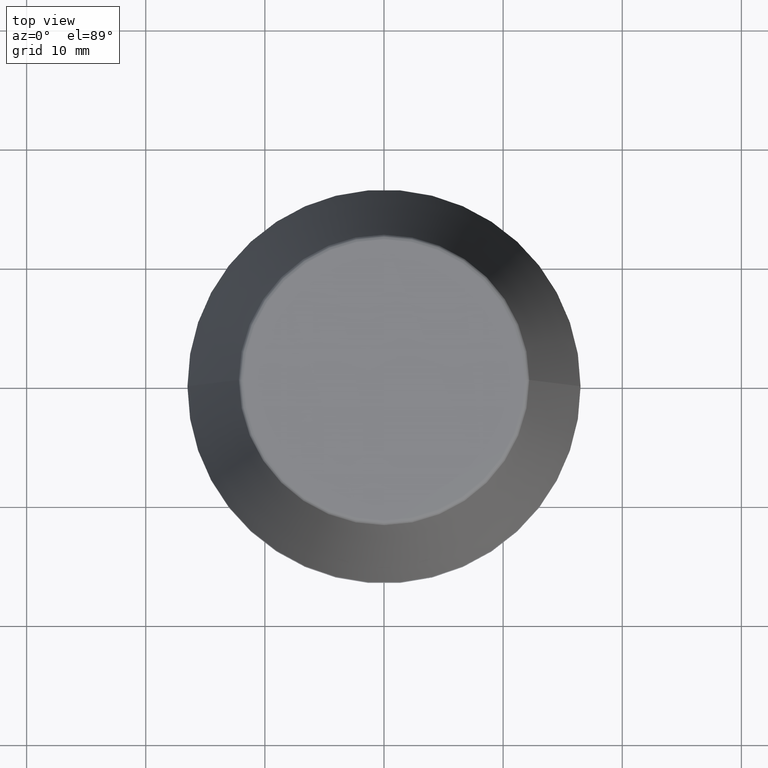
[diagram: clean part render]
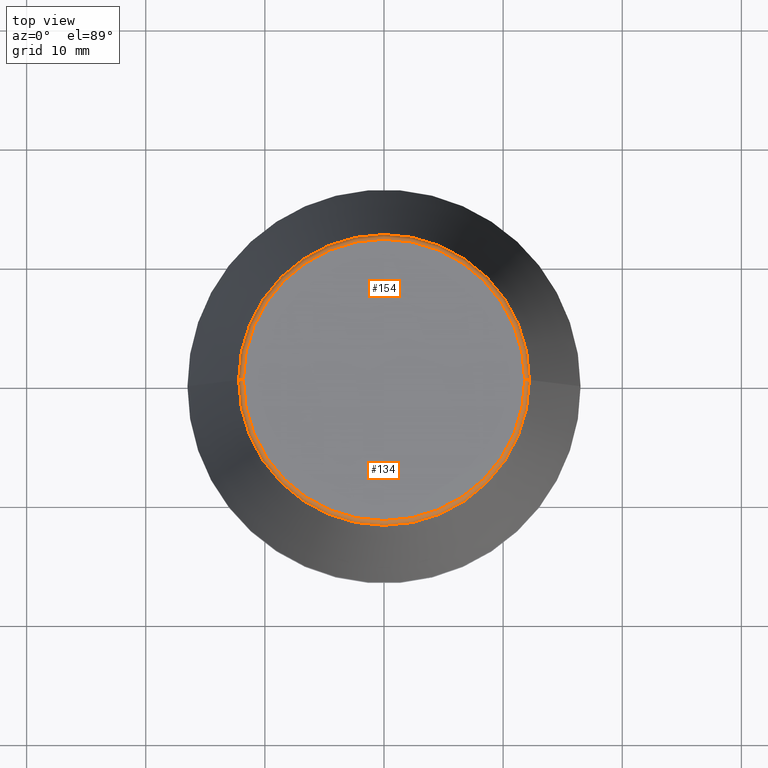
[diagram: same view with one multi-face feature highlighted, each face labeled with its STEP entity id]
A machine part, top view. The highlighted faces form ONE feature: a constant-radius fillet chain: 2 tangent blend faces with common blend radius 0.4 mm. The faces share edges in the B-rep.
Their STEP definitions:
[1] entity #134 (Torus):
#1 = EDGE_CURVE ( 'NONE', #303, #203, #47, .T. ) ;
#8 = DIRECTION ( 'NONE',  ( -0.0000000000000000000, -0.0000000000000000000, 1.000000000000000000 ) ) ;
#29 = FACE_OUTER_BOUND ( 'NONE', #52, .T. ) ;
#47 = CIRCLE ( 'NONE', #326, 12.20600611160694300 ) ;
#52 = EDGE_LOOP ( 'NONE', ( #286, #179, #62, #210 ) ) ;
#58 = CARTESIAN_POINT ( 'NONE',  ( -11.80989888411031400, 1.446295486667959300E-015, 39.60000000000000100 ) ) ;
#62 = ORIENTED_EDGE ( 'NONE', *, *, #248, .T. ) ;
#64 = CARTESIAN_POINT ( 'NONE',  ( 0.0000000000000000000, 0.0000000000000000000, 39.60000000000000100 ) ) ;
#65 = DIRECTION ( 'NONE',  ( -0.0000000000000000000, -0.0000000000000000000, 1.000000000000000000 ) ) ;
#69 = TOROIDAL_SURFACE ( 'NONE', #173, 11.80989888411031400, 0.4000000000000026900 ) ;
#76 = EDGE_CURVE ( 'NONE', #102, #290, #361, .T. ) ;
#78 = CIRCLE ( 'NONE', #153, 0.4000000000000045200 ) ;
#87 = CARTESIAN_POINT ( 'NONE',  ( 0.0000000000000000000, 0.0000000000000000000, 40.00000000000000700 ) ) ;
#95 = DIRECTION ( 'NONE',  ( 1.000000000000000000, 0.0000000000000000000, 0.0000000000000000000 ) ) ;
#102 = VERTEX_POINT ( 'NONE', #264 ) ;
#134 = ADVANCED_FACE ( 'NONE', ( #29 ), #69, .T. ) ;
#139 = DIRECTION ( 'NONE',  ( 1.000000000000000000, 0.0000000000000000000, 0.0000000000000000000 ) ) ;
#144 = DIRECTION ( 'NONE',  ( 1.224646799147353200E-016, 1.000000000000000000, 0.0000000000000000000 ) ) ;
#153 = AXIS2_PLACEMENT_3D ( 'NONE', #329, #358, #178 ) ;
#163 = AXIS2_PLACEMENT_3D ( 'NONE', #58, #144, #236 ) ;
#173 = AXIS2_PLACEMENT_3D ( 'NONE', #64, #65, #95 ) ;
#178 = DIRECTION ( 'NONE',  ( 0.0000000000000000000, 0.0000000000000000000, -1.000000000000000000 ) ) ;
#179 = ORIENTED_EDGE ( 'NONE', *, *, #1, .T. ) ;
#190 = EDGE_CURVE ( 'NONE', #303, #102, #202, .T. ) ;
#194 = AXIS2_PLACEMENT_3D ( 'NONE', #87, #8, #217 ) ;
#202 = CIRCLE ( 'NONE', #163, 0.4000000000000028000 ) ;
#203 = VERTEX_POINT ( 'NONE', #270 ) ;
#210 = ORIENTED_EDGE ( 'NONE', *, *, #76, .F. ) ;
#217 = DIRECTION ( 'NONE',  ( 1.000000000000000000, 0.0000000000000000000, 0.0000000000000000000 ) ) ;
#236 = DIRECTION ( 'NONE',  ( -1.000000000000000000, 1.224646799147352500E-016, 0.0000000000000000000 ) ) ;
#244 = CARTESIAN_POINT ( 'NONE',  ( -12.20600611160694300, 0.0000000000000000000, 39.65566924038402900 ) ) ;
#248 = EDGE_CURVE ( 'NONE', #203, #290, #78, .T. ) ;
#264 = CARTESIAN_POINT ( 'NONE',  ( -11.80989888411031400, 1.470550059081603400E-015, 40.00000000000000700 ) ) ;
#270 = CARTESIAN_POINT ( 'NONE',  ( 12.20600611160694300, 1.757755848304969800E-015, 39.65566924038402900 ) ) ;
#271 = CARTESIAN_POINT ( 'NONE',  ( 11.80989888411031400, 0.0000000000000000000, 40.00000000000000700 ) ) ;
#286 = ORIENTED_EDGE ( 'NONE', *, *, #190, .F. ) ;
#290 = VERTEX_POINT ( 'NONE', #271 ) ;
#303 = VERTEX_POINT ( 'NONE', #244 ) ;
#323 = DIRECTION ( 'NONE',  ( -0.0000000000000000000, -0.0000000000000000000, 1.000000000000000000 ) ) ;
#326 = AXIS2_PLACEMENT_3D ( 'NONE', #378, #323, #139 ) ;
#329 = CARTESIAN_POINT ( 'NONE',  ( 11.80989888411031400, 0.0000000000000000000, 39.60000000000000100 ) ) ;
#358 = DIRECTION ( 'NONE',  ( 0.0000000000000000000, -1.000000000000000000, 0.0000000000000000000 ) ) ;
#361 = CIRCLE ( 'NONE', #194, 11.80989888411031400 ) ;
#378 = CARTESIAN_POINT ( 'NONE',  ( 0.0000000000000000000, 0.0000000000000000000, 39.65566924038402900 ) ) ;
[2] entity #154 (Torus):
#17 = CARTESIAN_POINT ( 'NONE',  ( 0.0000000000000000000, 0.0000000000000000000, 40.00000000000000700 ) ) ;
#51 = EDGE_CURVE ( 'NONE', #203, #303, #172, .T. ) ;
#58 = CARTESIAN_POINT ( 'NONE',  ( -11.80989888411031400, 1.446295486667959300E-015, 39.60000000000000100 ) ) ;
#78 = CIRCLE ( 'NONE', #153, 0.4000000000000045200 ) ;
#85 = ORIENTED_EDGE ( 'NONE', *, *, #366, .F. ) ;
#101 = CARTESIAN_POINT ( 'NONE',  ( 0.0000000000000000000, 0.0000000000000000000, 39.60000000000000100 ) ) ;
#102 = VERTEX_POINT ( 'NONE', #264 ) ;
#127 = AXIS2_PLACEMENT_3D ( 'NONE', #17, #267, #384 ) ;
#144 = DIRECTION ( 'NONE',  ( 1.224646799147353200E-016, 1.000000000000000000, 0.0000000000000000000 ) ) ;
#153 = AXIS2_PLACEMENT_3D ( 'NONE', #329, #358, #178 ) ;
#154 = ADVANCED_FACE ( 'NONE', ( #291 ), #304, .T. ) ;
#157 = EDGE_LOOP ( 'NONE', ( #301, #359, #85, #252 ) ) ;
#163 = AXIS2_PLACEMENT_3D ( 'NONE', #58, #144, #236 ) ;
#171 = AXIS2_PLACEMENT_3D ( 'NONE', #101, #307, #272 ) ;
#172 = CIRCLE ( 'NONE', #266, 12.20600611160694300 ) ;
#178 = DIRECTION ( 'NONE',  ( 0.0000000000000000000, 0.0000000000000000000, -1.000000000000000000 ) ) ;
#187 = DIRECTION ( 'NONE',  ( -0.0000000000000000000, -0.0000000000000000000, 1.000000000000000000 ) ) ;
#190 = EDGE_CURVE ( 'NONE', #303, #102, #202, .T. ) ;
#202 = CIRCLE ( 'NONE', #163, 0.4000000000000028000 ) ;
#203 = VERTEX_POINT ( 'NONE', #270 ) ;
#236 = DIRECTION ( 'NONE',  ( -1.000000000000000000, 1.224646799147352500E-016, 0.0000000000000000000 ) ) ;
#244 = CARTESIAN_POINT ( 'NONE',  ( -12.20600611160694300, 0.0000000000000000000, 39.65566924038402900 ) ) ;
#248 = EDGE_CURVE ( 'NONE', #203, #290, #78, .T. ) ;
#252 = ORIENTED_EDGE ( 'NONE', *, *, #248, .F. ) ;
#264 = CARTESIAN_POINT ( 'NONE',  ( -11.80989888411031400, 1.470550059081603400E-015, 40.00000000000000700 ) ) ;
#266 = AXIS2_PLACEMENT_3D ( 'NONE', #369, #187, #278 ) ;
#267 = DIRECTION ( 'NONE',  ( -0.0000000000000000000, -0.0000000000000000000, 1.000000000000000000 ) ) ;
#270 = CARTESIAN_POINT ( 'NONE',  ( 12.20600611160694300, 1.757755848304969800E-015, 39.65566924038402900 ) ) ;
#271 = CARTESIAN_POINT ( 'NONE',  ( 11.80989888411031400, 0.0000000000000000000, 40.00000000000000700 ) ) ;
#272 = DIRECTION ( 'NONE',  ( 1.000000000000000000, 0.0000000000000000000, 0.0000000000000000000 ) ) ;
#278 = DIRECTION ( 'NONE',  ( 1.000000000000000000, 0.0000000000000000000, 0.0000000000000000000 ) ) ;
#290 = VERTEX_POINT ( 'NONE', #271 ) ;
#291 = FACE_OUTER_BOUND ( 'NONE', #157, .T. ) ;
#301 = ORIENTED_EDGE ( 'NONE', *, *, #51, .T. ) ;
#303 = VERTEX_POINT ( 'NONE', #244 ) ;
#304 = TOROIDAL_SURFACE ( 'NONE', #171, 11.80989888411031400, 0.4000000000000026900 ) ;
#307 = DIRECTION ( 'NONE',  ( -0.0000000000000000000, -0.0000000000000000000, 1.000000000000000000 ) ) ;
#329 = CARTESIAN_POINT ( 'NONE',  ( 11.80989888411031400, 0.0000000000000000000, 39.60000000000000100 ) ) ;
#358 = DIRECTION ( 'NONE',  ( 0.0000000000000000000, -1.000000000000000000, 0.0000000000000000000 ) ) ;
#359 = ORIENTED_EDGE ( 'NONE', *, *, #190, .T. ) ;
#366 = EDGE_CURVE ( 'NONE', #290, #102, #382, .T. ) ;
#369 = CARTESIAN_POINT ( 'NONE',  ( 0.0000000000000000000, 0.0000000000000000000, 39.65566924038402900 ) ) ;
#382 = CIRCLE ( 'NONE', #127, 11.80989888411031400 ) ;
#384 = DIRECTION ( 'NONE',  ( 1.000000000000000000, 0.0000000000000000000, 0.0000000000000000000 ) ) ;